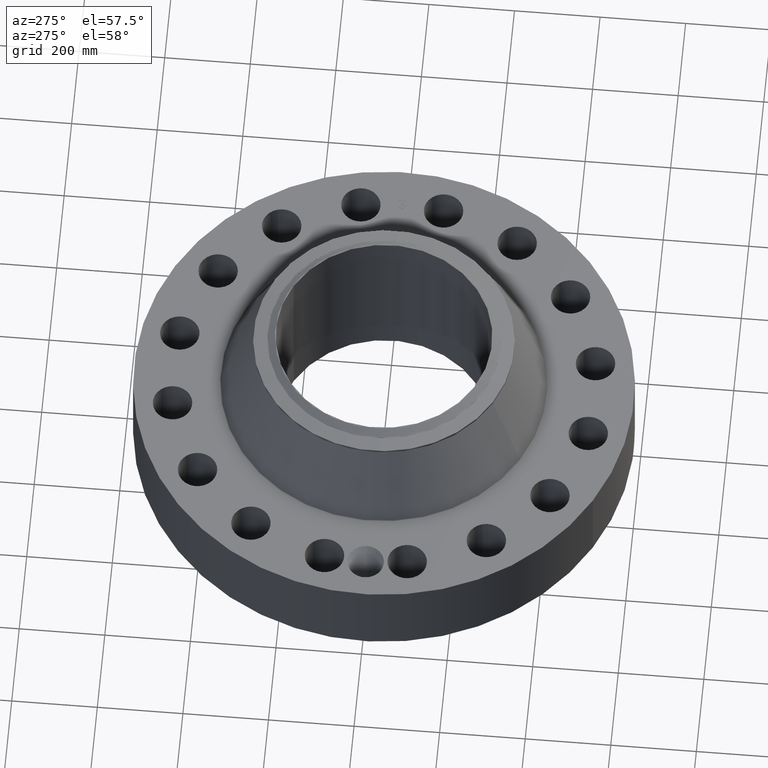
[diagram: clean part render]
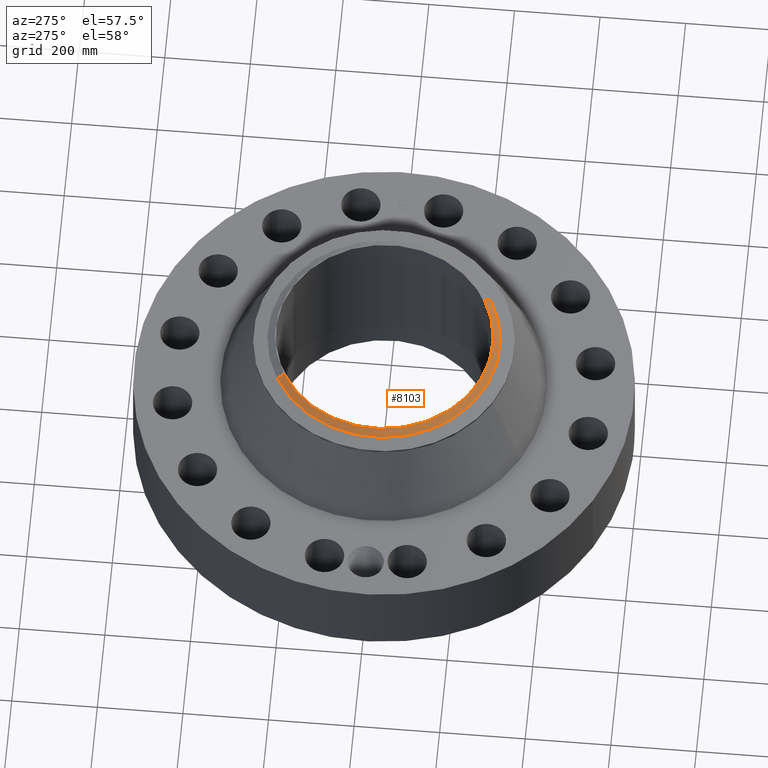
[diagram: same view with one face highlighted and labeled with its STEP entity id]
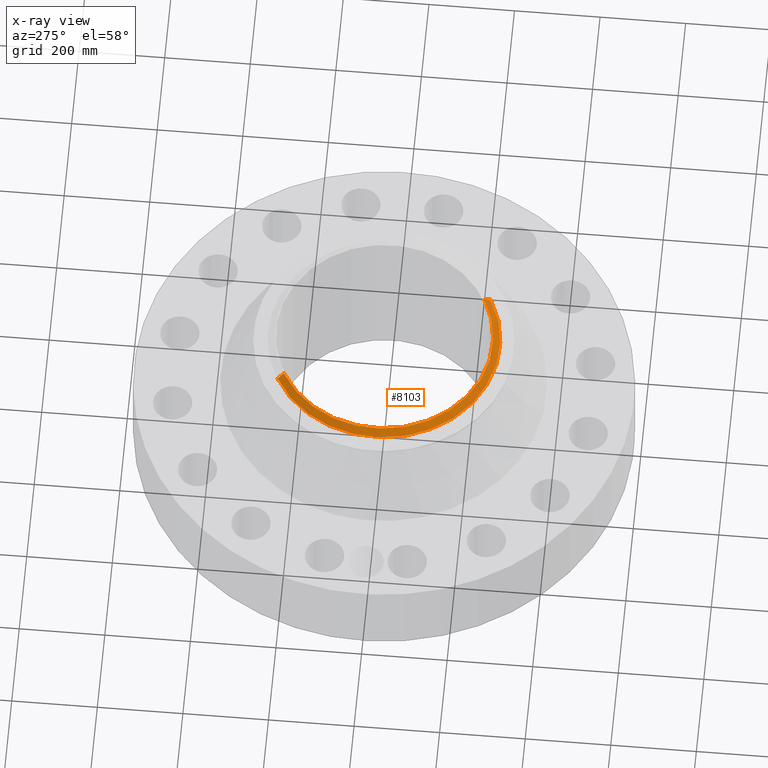
[diagram: x-ray of the same camera — body ghosted, the highlighted face saturated]
A machine part, auxiliary view. The second image highlights one B-rep face of the part: STEP entity #8103.
The next image is the same camera in x-ray: the body ghosted, the highlighted face saturated — about 0% of this face is hidden behind the body in this view.
In plain terms, the highlighted conical surface has half-angle 52.5 deg.
Its self-contained STEP definition (entity closure, byte-faithful):
#4549=AXIS2_PLACEMENT_3D('Circle Axis2P3D',#4547,#4548,$) ;
#8076=AXIS2_PLACEMENT_3D('Cone Axis2P3D',#8073,#8074,#8075) ;
#8087=AXIS2_PLACEMENT_3D('Circle Axis2P3D',#8085,#8086,$) ;
#4542=CARTESIAN_POINT('Vertex',(4.80228104508,-8.79051648923,16.2500000001)) ;
#4544=CARTESIAN_POINT('Vertex',(-4.80228104508,8.79051648923,16.2500000001)) ;
#4547=CARTESIAN_POINT('Axis2P3D Location',(0.,0.,16.2500000001)) ;
#8073=CARTESIAN_POINT('Axis2P3D Location',(0.,0.,16.2500000001)) ;
#8078=CARTESIAN_POINT('Line Origine',(-4.95722234763,9.07413464113,16.0020143726)) ;
#8082=CARTESIAN_POINT('Vertex',(-5.11216365018,9.35775279303,15.7540287452)) ;
#8085=CARTESIAN_POINT('Axis2P3D Location',(0.,0.,15.7540287452)) ;
#8089=CARTESIAN_POINT('Vertex',(5.11216365018,-9.35775279303,15.7540287452)) ;
#8092=CARTESIAN_POINT('Line Origine',(4.95722234763,-9.07413464113,16.0020143726)) ;
#4548=DIRECTION('Axis2P3D Direction',(0.,0.,-0.0393700787402)) ;
#8074=DIRECTION('Axis2P3D Direction',(-0.,-0.,-0.0393700787402)) ;
#8075=DIRECTION('Axis2P3D XDirection',(-0.0188750212049,0.0345504945626,0.)) ;
#8079=DIRECTION('Vector Direction',(-0.014974561121,0.02741075027,-0.023966985394)) ;
#8086=DIRECTION('Axis2P3D Direction',(0.,0.,-0.0393700787402)) ;
#8093=DIRECTION('Vector Direction',(0.014974561121,-0.02741075027,-0.023966985394)) ;
#8080=VECTOR('Line Direction',#8079,0.0393700787402) ;
#8094=VECTOR('Line Direction',#8093,0.0393700787402) ;
#8098=ORIENTED_EDGE('',*,*,#4551,.F.) ;
#8099=ORIENTED_EDGE('',*,*,#8084,.T.) ;
#8100=ORIENTED_EDGE('',*,*,#8091,.T.) ;
#8101=ORIENTED_EDGE('',*,*,#8096,.F.) ;
#8103=ADVANCED_FACE('PartBody',(#8102),#8077,.T.) ;
#4550=CIRCLE('generated circle',#4549,10.0167401575) ;
#8088=CIRCLE('generated circle',#8087,10.6631024811) ;
#8077=CONICAL_SURFACE('Cone',#8076,10.0167401575,0.916297857297) ;
#4551=EDGE_CURVE('',#4545,#4543,#4550,.F.) ;
#8084=EDGE_CURVE('',#4545,#8083,#8081,.T.) ;
#8091=EDGE_CURVE('',#8083,#8090,#8088,.F.) ;
#8096=EDGE_CURVE('',#4543,#8090,#8095,.T.) ;
#8097=EDGE_LOOP('',(#8098,#8099,#8100,#8101)) ;
#8102=FACE_OUTER_BOUND('',#8097,.T.) ;
#8081=LINE('Line',#8078,#8080) ;
#8095=LINE('Line',#8092,#8094) ;
#4543=VERTEX_POINT('',#4542) ;
#4545=VERTEX_POINT('',#4544) ;
#8083=VERTEX_POINT('',#8082) ;
#8090=VERTEX_POINT('',#8089) ;